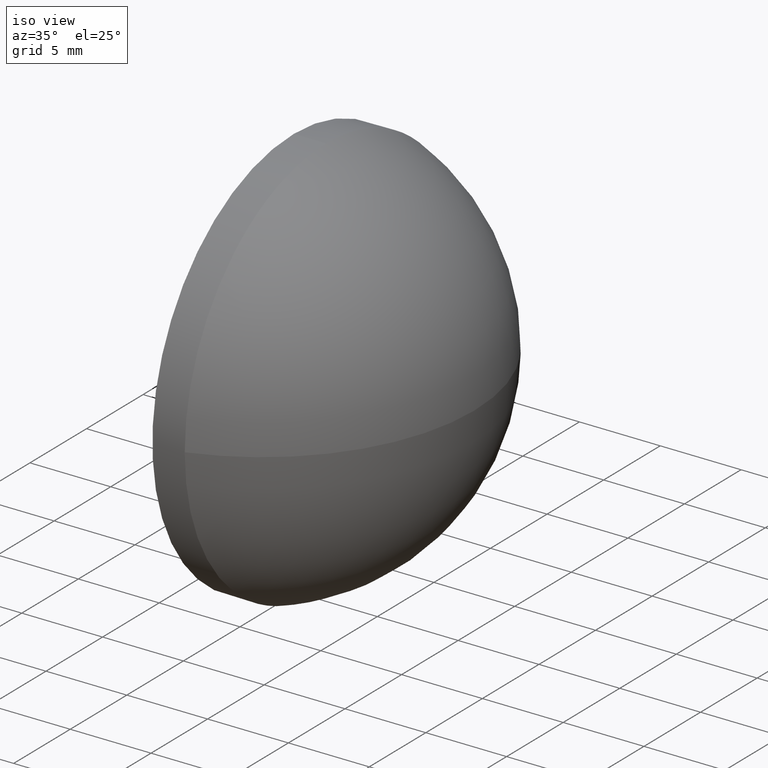
[diagram: clean part render]
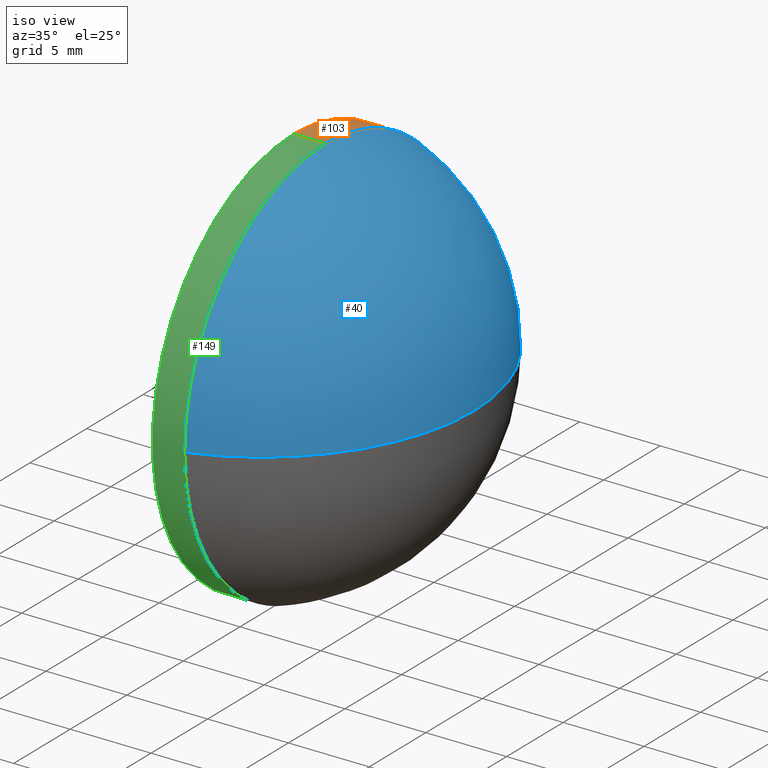
[diagram: same view with three faces highlighted in distinct colors, each labeled with its STEP entity id]
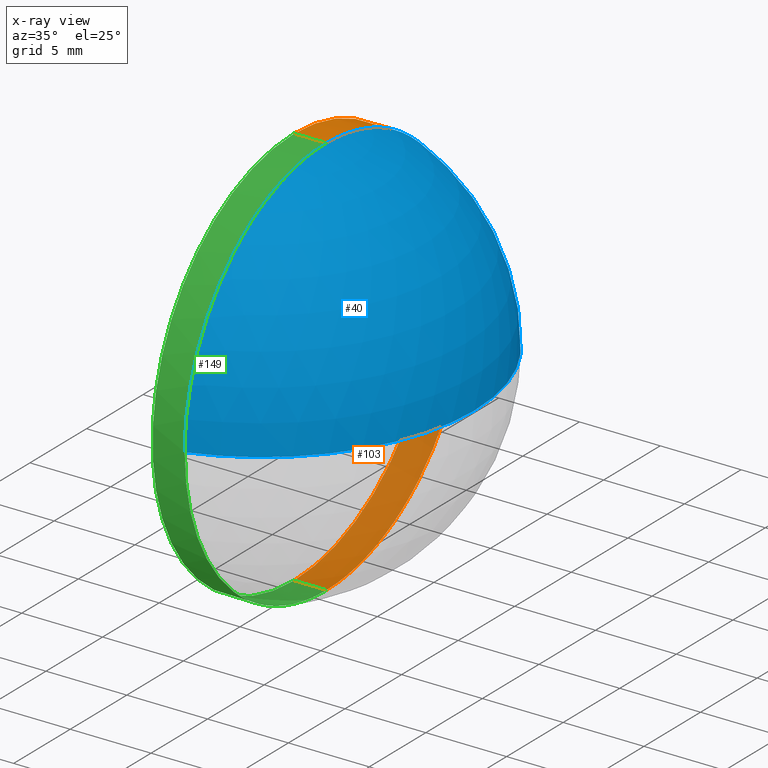
[diagram: x-ray of the same camera — body ghosted, the three highlighted faces saturated]
A machine part, iso view with three faces highlighted in distinct colors.
The next image is the same camera in x-ray (body ghosted, the three faces saturated) — at least one of them is partly hidden behind the body in this view.
Their STEP definitions:

[orange] entity #103 — the highlighted cylindrical surface (partial cylindrical patch) has radius 12.5 mm, axis along (-1, -0, -0).
#8 = CARTESIAN_POINT ( 'NONE',  ( 511.7602360895284600, 5.104111790186721000, 0.0000000000000000000 ) ) ;
#13 = VERTEX_POINT ( 'NONE', #160 ) ;
#16 = CARTESIAN_POINT ( 'NONE',  ( 507.7311285110914700, 5.104111790186721000, 0.0000000000000000000 ) ) ;
#17 = DIRECTION ( 'NONE',  ( 0.0000000000000000000, 0.0000000000000000000, 1.000000000000000000 ) ) ;
#19 = DIRECTION ( 'NONE',  ( -1.000000000000000000, -0.0000000000000000000, -0.0000000000000000000 ) ) ;
#21 = CARTESIAN_POINT ( 'NONE',  ( 507.7311285110914700, 5.104111790186722800, -12.49999999999999800 ) ) ;
#23 = CIRCLE ( 'NONE', #98, 12.49999999999999800 ) ;
#25 = AXIS2_PLACEMENT_3D ( 'NONE', #178, #19, #17 ) ;
#26 = DIRECTION ( 'NONE',  ( -1.000000000000000000, -0.0000000000000000000, -0.0000000000000000000 ) ) ;
#27 = DIRECTION ( 'NONE',  ( -1.000000000000000000, -0.0000000000000000000, -0.0000000000000000000 ) ) ;
#42 = CARTESIAN_POINT ( 'NONE',  ( 511.7602360895284600, 5.104111790186722800, -12.49999999999999800 ) ) ;
#43 = CIRCLE ( 'NONE', #173, 12.49999999999999800 ) ;
#46 = DIRECTION ( 'NONE',  ( -1.000000000000000000, -0.0000000000000000000, -0.0000000000000000000 ) ) ;
#48 = VERTEX_POINT ( 'NONE', #42 ) ;
#49 = CARTESIAN_POINT ( 'NONE',  ( 511.7602360895284600, 17.60411179018671000, 0.0000000000000000000 ) ) ;
#51 = CYLINDRICAL_SURFACE ( 'NONE', #67, 12.49999999999999800 ) ;
#53 = VECTOR ( 'NONE', #26, 1000.000000000000000 ) ;
#56 = DIRECTION ( 'NONE',  ( 0.0000000000000000000, 0.0000000000000000000, 1.000000000000000000 ) ) ;
#62 = EDGE_CURVE ( 'NONE', #86, #176, #123, .T. ) ;
#67 = AXIS2_PLACEMENT_3D ( 'NONE', #16, #27, #56 ) ;
#77 = EDGE_CURVE ( 'NONE', #125, #48, #23, .T. ) ;
#85 = EDGE_CURVE ( 'NONE', #13, #86, #135, .T. ) ;
#86 = VERTEX_POINT ( 'NONE', #89 ) ;
#89 = CARTESIAN_POINT ( 'NONE',  ( 509.7602360895284600, 5.104111790186721000, 12.49999999999999800 ) ) ;
#98 = AXIS2_PLACEMENT_3D ( 'NONE', #130, #116, #161 ) ;
#99 = ORIENTED_EDGE ( 'NONE', *, *, #62, .F. ) ;
#100 = FACE_OUTER_BOUND ( 'NONE', #129, .T. ) ;
#103 = ADVANCED_FACE ( 'NONE', ( #100 ), #51, .T. ) ;
#104 = CARTESIAN_POINT ( 'NONE',  ( 507.7311285110914700, 5.104111790186721000, 12.49999999999999800 ) ) ;
#116 = DIRECTION ( 'NONE',  ( -1.000000000000000000, -0.0000000000000000000, -0.0000000000000000000 ) ) ;
#121 = CARTESIAN_POINT ( 'NONE',  ( 509.7602360895284600, 5.104111790186722800, -12.49999999999999800 ) ) ;
#123 = CIRCLE ( 'NONE', #25, 12.49999999999999800 ) ;
#125 = VERTEX_POINT ( 'NONE', #49 ) ;
#129 = EDGE_LOOP ( 'NONE', ( #155, #180, #99, #165, #153 ) ) ;
#130 = CARTESIAN_POINT ( 'NONE',  ( 511.7602360895284600, 5.104111790186721000, 0.0000000000000000000 ) ) ;
#135 = LINE ( 'NONE', #104, #53 ) ;
#136 = EDGE_CURVE ( 'NONE', #13, #125, #43, .T. ) ;
#153 = ORIENTED_EDGE ( 'NONE', *, *, #136, .T. ) ;
#155 = ORIENTED_EDGE ( 'NONE', *, *, #77, .T. ) ;
#160 = CARTESIAN_POINT ( 'NONE',  ( 511.7602360895284600, 5.104111790186721000, 12.49999999999999800 ) ) ;
#161 = DIRECTION ( 'NONE',  ( 0.0000000000000000000, 0.0000000000000000000, 1.000000000000000000 ) ) ;
#165 = ORIENTED_EDGE ( 'NONE', *, *, #85, .F. ) ;
#167 = DIRECTION ( 'NONE',  ( 0.0000000000000000000, 0.0000000000000000000, 1.000000000000000000 ) ) ;
#169 = LINE ( 'NONE', #21, #175 ) ;
#170 = EDGE_CURVE ( 'NONE', #48, #176, #169, .T. ) ;
#173 = AXIS2_PLACEMENT_3D ( 'NONE', #8, #46, #167 ) ;
#175 = VECTOR ( 'NONE', #182, 1000.000000000000000 ) ;
#176 = VERTEX_POINT ( 'NONE', #121 ) ;
#178 = CARTESIAN_POINT ( 'NONE',  ( 509.7602360895284600, 5.104111790186721000, 0.0000000000000000000 ) ) ;
#180 = ORIENTED_EDGE ( 'NONE', *, *, #170, .T. ) ;
#182 = DIRECTION ( 'NONE',  ( -1.000000000000000000, -0.0000000000000000000, -0.0000000000000000000 ) ) ;

[blue] entity #40 — the highlighted spherical surface has radius 13.1089 mm.
#2 = CIRCLE ( 'NONE', #84, 13.10893013100433700 ) ;
#5 = CARTESIAN_POINT ( 'NONE',  ( 507.8113059585240900, 5.104111790186718300, 0.0000000000000000000 ) ) ;
#6 = AXIS2_PLACEMENT_3D ( 'NONE', #166, #80, #110 ) ;
#7 = EDGE_LOOP ( 'NONE', ( #185, #114, #81, #69 ) ) ;
#8 = CARTESIAN_POINT ( 'NONE',  ( 511.7602360895284600, 5.104111790186721000, 0.0000000000000000000 ) ) ;
#13 = VERTEX_POINT ( 'NONE', #160 ) ;
#29 = CARTESIAN_POINT ( 'NONE',  ( 520.9202360895284300, 5.104111790186719200, 0.0000000000000000000 ) ) ;
#33 = DIRECTION ( 'NONE',  ( 0.0000000000000000000, 0.0000000000000000000, 1.000000000000000000 ) ) ;
#37 = VERTEX_POINT ( 'NONE', #29 ) ;
#40 = ADVANCED_FACE ( 'NONE', ( #147 ), #66, .T. ) ;
#43 = CIRCLE ( 'NONE', #173, 12.49999999999999800 ) ;
#44 = DIRECTION ( 'NONE',  ( 1.000000000000000000, 0.0000000000000000000, 0.0000000000000000000 ) ) ;
#46 = DIRECTION ( 'NONE',  ( -1.000000000000000000, -0.0000000000000000000, -0.0000000000000000000 ) ) ;
#49 = CARTESIAN_POINT ( 'NONE',  ( 511.7602360895284600, 17.60411179018671000, 0.0000000000000000000 ) ) ;
#55 = DIRECTION ( 'NONE',  ( -0.0000000000000000000, 0.0000000000000000000, -1.000000000000000000 ) ) ;
#66 = SPHERICAL_SURFACE ( 'NONE', #141, 13.10893013100435700 ) ;
#69 = ORIENTED_EDGE ( 'NONE', *, *, #115, .F. ) ;
#75 = VERTEX_POINT ( 'NONE', #132 ) ;
#80 = DIRECTION ( 'NONE',  ( 0.0000000000000000000, 1.224646799147353200E-016, -1.000000000000000000 ) ) ;
#81 = ORIENTED_EDGE ( 'NONE', *, *, #136, .F. ) ;
#84 = AXIS2_PLACEMENT_3D ( 'NONE', #183, #93, #44 ) ;
#93 = DIRECTION ( 'NONE',  ( -0.0000000000000000000, 0.0000000000000000000, 1.000000000000000000 ) ) ;
#110 = DIRECTION ( 'NONE',  ( 0.0000000000000000000, 1.000000000000000000, 1.224646799147353200E-016 ) ) ;
#114 = ORIENTED_EDGE ( 'NONE', *, *, #145, .T. ) ;
#115 = EDGE_CURVE ( 'NONE', #75, #13, #128, .T. ) ;
#125 = VERTEX_POINT ( 'NONE', #49 ) ;
#128 = CIRCLE ( 'NONE', #172, 12.49999999999999800 ) ;
#132 = CARTESIAN_POINT ( 'NONE',  ( 511.7602360895284600, -7.395888209813271000, -1.530808498934190100E-015 ) ) ;
#136 = EDGE_CURVE ( 'NONE', #13, #125, #43, .T. ) ;
#137 = DIRECTION ( 'NONE',  ( -1.000000000000000000, -0.0000000000000000000, -0.0000000000000000000 ) ) ;
#141 = AXIS2_PLACEMENT_3D ( 'NONE', #5, #55, #144 ) ;
#143 = CIRCLE ( 'NONE', #6, 13.10893013100435500 ) ;
#144 = DIRECTION ( 'NONE',  ( 0.0000000000000000000, 1.000000000000000000, 0.0000000000000000000 ) ) ;
#145 = EDGE_CURVE ( 'NONE', #37, #125, #2, .T. ) ;
#147 = FACE_OUTER_BOUND ( 'NONE', #7, .T. ) ;
#151 = CARTESIAN_POINT ( 'NONE',  ( 511.7602360895284600, 5.104111790186721000, 0.0000000000000000000 ) ) ;
#160 = CARTESIAN_POINT ( 'NONE',  ( 511.7602360895284600, 5.104111790186721000, 12.49999999999999800 ) ) ;
#166 = CARTESIAN_POINT ( 'NONE',  ( 507.8113059585240900, 5.104111790186718300, 0.0000000000000000000 ) ) ;
#167 = DIRECTION ( 'NONE',  ( 0.0000000000000000000, 0.0000000000000000000, 1.000000000000000000 ) ) ;
#172 = AXIS2_PLACEMENT_3D ( 'NONE', #151, #137, #33 ) ;
#173 = AXIS2_PLACEMENT_3D ( 'NONE', #8, #46, #167 ) ;
#183 = CARTESIAN_POINT ( 'NONE',  ( 507.8113059585240900, 5.104111790186718300, 0.0000000000000000000 ) ) ;
#184 = EDGE_CURVE ( 'NONE', #37, #75, #143, .T. ) ;
#185 = ORIENTED_EDGE ( 'NONE', *, *, #184, .F. ) ;

[green] entity #149 — the highlighted cylindrical surface (partial cylindrical patch) has radius 12.5 mm, axis along (-1, -0, -0).
#1 = AXIS2_PLACEMENT_3D ( 'NONE', #102, #101, #28 ) ;
#11 = ORIENTED_EDGE ( 'NONE', *, *, #85, .T. ) ;
#13 = VERTEX_POINT ( 'NONE', #160 ) ;
#18 = EDGE_CURVE ( 'NONE', #48, #75, #171, .T. ) ;
#21 = CARTESIAN_POINT ( 'NONE',  ( 507.7311285110914700, 5.104111790186722800, -12.49999999999999800 ) ) ;
#26 = DIRECTION ( 'NONE',  ( -1.000000000000000000, -0.0000000000000000000, -0.0000000000000000000 ) ) ;
#28 = DIRECTION ( 'NONE',  ( 0.0000000000000000000, 0.0000000000000000000, 1.000000000000000000 ) ) ;
#30 = DIRECTION ( 'NONE',  ( 0.0000000000000000000, 0.0000000000000000000, 1.000000000000000000 ) ) ;
#33 = DIRECTION ( 'NONE',  ( 0.0000000000000000000, 0.0000000000000000000, 1.000000000000000000 ) ) ;
#35 = EDGE_LOOP ( 'NONE', ( #95, #158, #82, #11, #111 ) ) ;
#42 = CARTESIAN_POINT ( 'NONE',  ( 511.7602360895284600, 5.104111790186722800, -12.49999999999999800 ) ) ;
#47 = DIRECTION ( 'NONE',  ( -1.000000000000000000, -0.0000000000000000000, -0.0000000000000000000 ) ) ;
#48 = VERTEX_POINT ( 'NONE', #42 ) ;
#50 = FACE_OUTER_BOUND ( 'NONE', #35, .T. ) ;
#52 = CIRCLE ( 'NONE', #96, 12.49999999999999800 ) ;
#53 = VECTOR ( 'NONE', #26, 1000.000000000000000 ) ;
#64 = AXIS2_PLACEMENT_3D ( 'NONE', #94, #181, #118 ) ;
#68 = CYLINDRICAL_SURFACE ( 'NONE', #64, 12.49999999999999800 ) ;
#75 = VERTEX_POINT ( 'NONE', #132 ) ;
#82 = ORIENTED_EDGE ( 'NONE', *, *, #115, .T. ) ;
#85 = EDGE_CURVE ( 'NONE', #13, #86, #135, .T. ) ;
#86 = VERTEX_POINT ( 'NONE', #89 ) ;
#89 = CARTESIAN_POINT ( 'NONE',  ( 509.7602360895284600, 5.104111790186721000, 12.49999999999999800 ) ) ;
#94 = CARTESIAN_POINT ( 'NONE',  ( 507.7311285110914700, 5.104111790186721000, 0.0000000000000000000 ) ) ;
#95 = ORIENTED_EDGE ( 'NONE', *, *, #170, .F. ) ;
#96 = AXIS2_PLACEMENT_3D ( 'NONE', #163, #47, #30 ) ;
#101 = DIRECTION ( 'NONE',  ( -1.000000000000000000, -0.0000000000000000000, -0.0000000000000000000 ) ) ;
#102 = CARTESIAN_POINT ( 'NONE',  ( 511.7602360895284600, 5.104111790186721000, 0.0000000000000000000 ) ) ;
#104 = CARTESIAN_POINT ( 'NONE',  ( 507.7311285110914700, 5.104111790186721000, 12.49999999999999800 ) ) ;
#111 = ORIENTED_EDGE ( 'NONE', *, *, #157, .F. ) ;
#115 = EDGE_CURVE ( 'NONE', #75, #13, #128, .T. ) ;
#118 = DIRECTION ( 'NONE',  ( 0.0000000000000000000, 0.0000000000000000000, 1.000000000000000000 ) ) ;
#121 = CARTESIAN_POINT ( 'NONE',  ( 509.7602360895284600, 5.104111790186722800, -12.49999999999999800 ) ) ;
#128 = CIRCLE ( 'NONE', #172, 12.49999999999999800 ) ;
#132 = CARTESIAN_POINT ( 'NONE',  ( 511.7602360895284600, -7.395888209813271000, -1.530808498934190100E-015 ) ) ;
#135 = LINE ( 'NONE', #104, #53 ) ;
#137 = DIRECTION ( 'NONE',  ( -1.000000000000000000, -0.0000000000000000000, -0.0000000000000000000 ) ) ;
#149 = ADVANCED_FACE ( 'NONE', ( #50 ), #68, .T. ) ;
#151 = CARTESIAN_POINT ( 'NONE',  ( 511.7602360895284600, 5.104111790186721000, 0.0000000000000000000 ) ) ;
#157 = EDGE_CURVE ( 'NONE', #176, #86, #52, .T. ) ;
#158 = ORIENTED_EDGE ( 'NONE', *, *, #18, .T. ) ;
#160 = CARTESIAN_POINT ( 'NONE',  ( 511.7602360895284600, 5.104111790186721000, 12.49999999999999800 ) ) ;
#163 = CARTESIAN_POINT ( 'NONE',  ( 509.7602360895284600, 5.104111790186721000, 0.0000000000000000000 ) ) ;
#169 = LINE ( 'NONE', #21, #175 ) ;
#170 = EDGE_CURVE ( 'NONE', #48, #176, #169, .T. ) ;
#171 = CIRCLE ( 'NONE', #1, 12.49999999999999800 ) ;
#172 = AXIS2_PLACEMENT_3D ( 'NONE', #151, #137, #33 ) ;
#175 = VECTOR ( 'NONE', #182, 1000.000000000000000 ) ;
#176 = VERTEX_POINT ( 'NONE', #121 ) ;
#181 = DIRECTION ( 'NONE',  ( -1.000000000000000000, -0.0000000000000000000, -0.0000000000000000000 ) ) ;
#182 = DIRECTION ( 'NONE',  ( -1.000000000000000000, -0.0000000000000000000, -0.0000000000000000000 ) ) ;